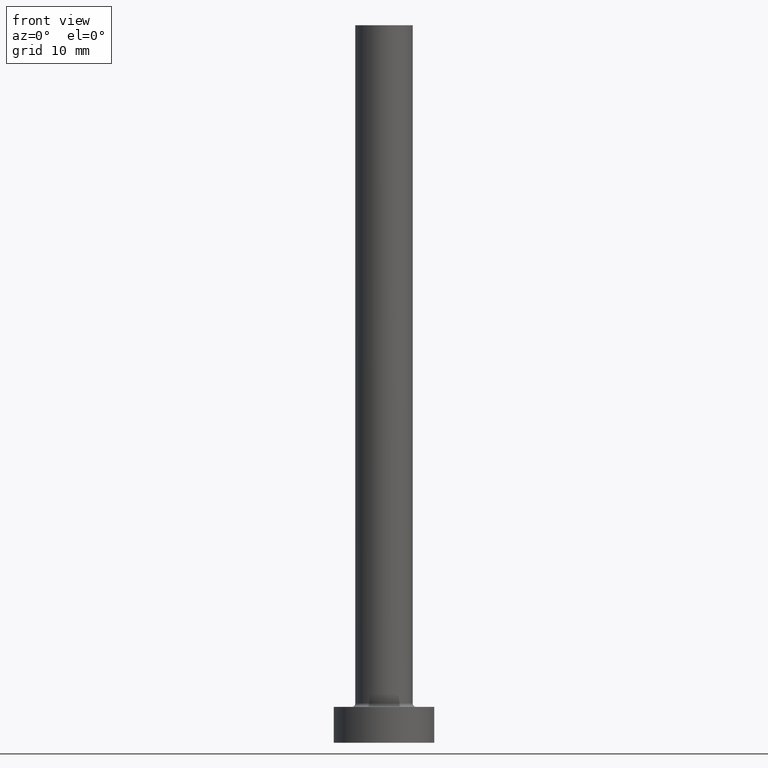
[diagram: clean part render]
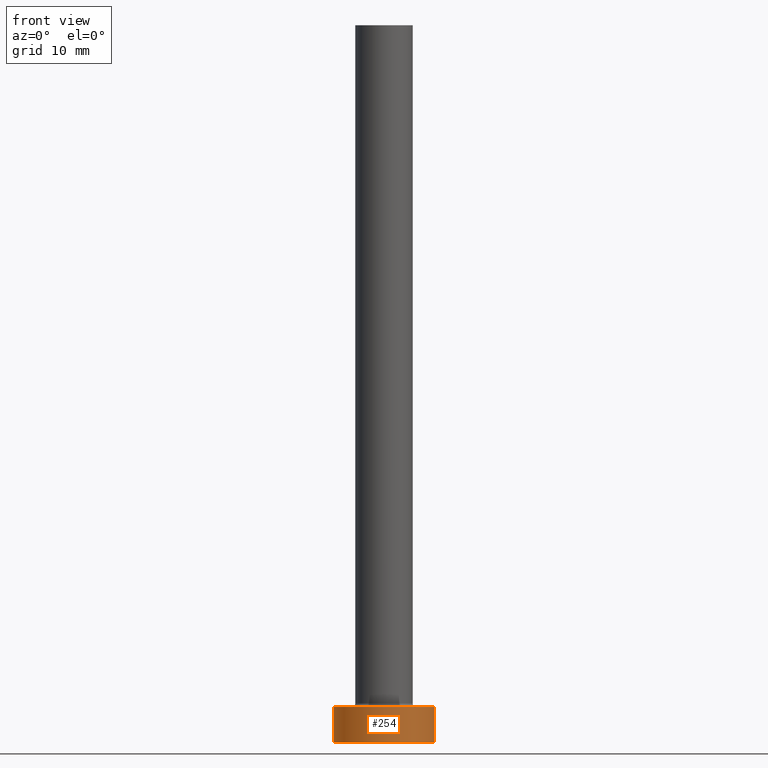
[diagram: same view with one face highlighted and labeled with its STEP entity id]
A machine part, front view. The second image highlights one B-rep face of the part: STEP entity #254.
In plain terms, the highlighted cylindrical surface (partial cylindrical patch) has radius 7 mm, axis along (-0, -0, -1).
Its self-contained STEP definition (entity closure, byte-faithful):
#2 = DIRECTION ( 'NONE',  ( 0.000000000000000000, 0.000000000000000000, 1.000000000000000000 ) ) ;
#9 = CARTESIAN_POINT ( 'NONE',  ( -7.000000000000000000, 0.000000000000000000, 0.000000000000000000 ) ) ;
#17 = LINE ( 'NONE', #223, #362 ) ;
#29 = VERTEX_POINT ( 'NONE', #160 ) ;
#34 = LINE ( 'NONE', #242, #245 ) ;
#36 = CARTESIAN_POINT ( 'NONE',  ( 7.000000000000000000, 8.572527594031473190E-16, 5.000000000000000000 ) ) ;
#43 = VERTEX_POINT ( 'NONE', #36 ) ;
#51 = CYLINDRICAL_SURFACE ( 'NONE', #206, 7.000000000000000000 ) ;
#53 = CARTESIAN_POINT ( 'NONE',  ( 0.000000000000000000, 0.000000000000000000, 5.000000000000000000 ) ) ;
#59 = CARTESIAN_POINT ( 'NONE',  ( 0.000000000000000000, 0.000000000000000000, 0.000000000000000000 ) ) ;
#64 = CIRCLE ( 'NONE', #255, 7.000000000000000000 ) ;
#69 = DIRECTION ( 'NONE',  ( -0.000000000000000000, -0.000000000000000000, -1.000000000000000000 ) ) ;
#105 = EDGE_CURVE ( 'NONE', #29, #152, #34, .T. ) ;
#113 = FACE_OUTER_BOUND ( 'NONE', #197, .T. ) ;
#114 = ORIENTED_EDGE ( 'NONE', *, *, #105, .T. ) ;
#118 = CIRCLE ( 'NONE', #421, 7.000000000000000000 ) ;
#135 = EDGE_CURVE ( 'NONE', #29, #43, #118, .T. ) ;
#152 = VERTEX_POINT ( 'NONE', #9 ) ;
#160 = CARTESIAN_POINT ( 'NONE',  ( -7.000000000000000000, 0.000000000000000000, 5.000000000000000000 ) ) ;
#197 = EDGE_LOOP ( 'NONE', ( #338, #400, #114, #359 ) ) ;
#206 = AXIS2_PLACEMENT_3D ( 'NONE', #235, #333, #381 ) ;
#223 = CARTESIAN_POINT ( 'NONE',  ( 7.000000000000000000, 8.572527594031473190E-16, 5.000000000000000000 ) ) ;
#235 = CARTESIAN_POINT ( 'NONE',  ( 0.000000000000000000, 0.000000000000000000, 5.000000000000000000 ) ) ;
#242 = CARTESIAN_POINT ( 'NONE',  ( -7.000000000000000000, 0.000000000000000000, 5.000000000000000000 ) ) ;
#245 = VECTOR ( 'NONE', #69, 1000.000000000000000 ) ;
#246 = DIRECTION ( 'NONE',  ( 1.000000000000000000, 0.000000000000000000, 0.000000000000000000 ) ) ;
#254 = ADVANCED_FACE ( 'NONE', ( #113 ), #51, .T. ) ;
#255 = AXIS2_PLACEMENT_3D ( 'NONE', #59, #308, #307 ) ;
#286 = EDGE_CURVE ( 'NONE', #152, #328, #64, .T. ) ;
#295 = DIRECTION ( 'NONE',  ( -0.000000000000000000, -0.000000000000000000, -1.000000000000000000 ) ) ;
#307 = DIRECTION ( 'NONE',  ( 1.000000000000000000, 0.000000000000000000, 0.000000000000000000 ) ) ;
#308 = DIRECTION ( 'NONE',  ( 0.000000000000000000, 0.000000000000000000, 1.000000000000000000 ) ) ;
#328 = VERTEX_POINT ( 'NONE', #329 ) ;
#329 = CARTESIAN_POINT ( 'NONE',  ( 7.000000000000000000, 8.572527594031473190E-16, 0.000000000000000000 ) ) ;
#333 = DIRECTION ( 'NONE',  ( -0.000000000000000000, -0.000000000000000000, -1.000000000000000000 ) ) ;
#338 = ORIENTED_EDGE ( 'NONE', *, *, #419, .F. ) ;
#359 = ORIENTED_EDGE ( 'NONE', *, *, #286, .T. ) ;
#362 = VECTOR ( 'NONE', #295, 1000.000000000000000 ) ;
#381 = DIRECTION ( 'NONE',  ( -1.000000000000000000, 0.000000000000000000, 0.000000000000000000 ) ) ;
#400 = ORIENTED_EDGE ( 'NONE', *, *, #135, .F. ) ;
#419 = EDGE_CURVE ( 'NONE', #43, #328, #17, .T. ) ;
#421 = AXIS2_PLACEMENT_3D ( 'NONE', #53, #2, #246 ) ;